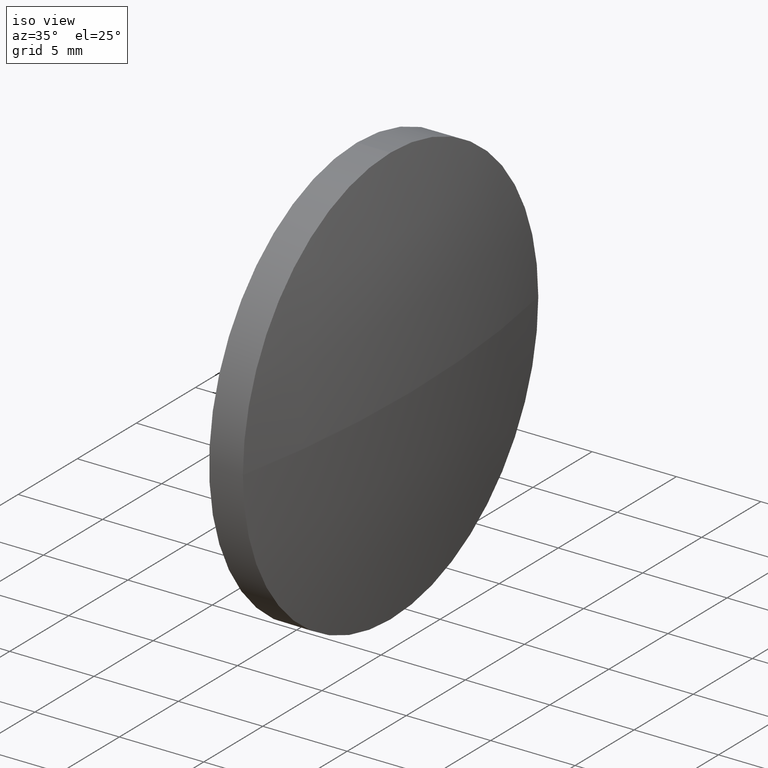
[diagram: clean part render]
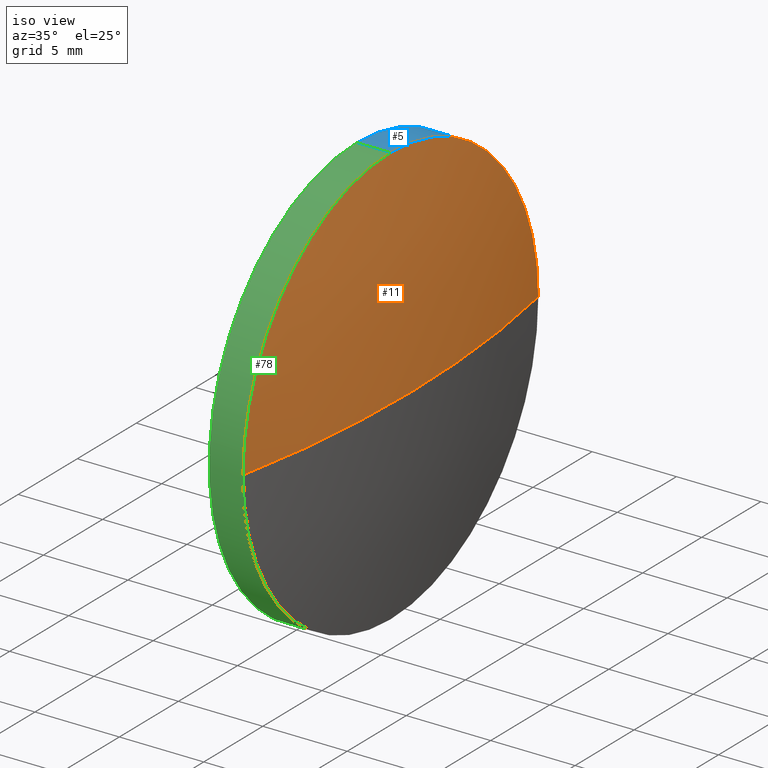
[diagram: same view with three faces highlighted in distinct colors, each labeled with its STEP entity id]
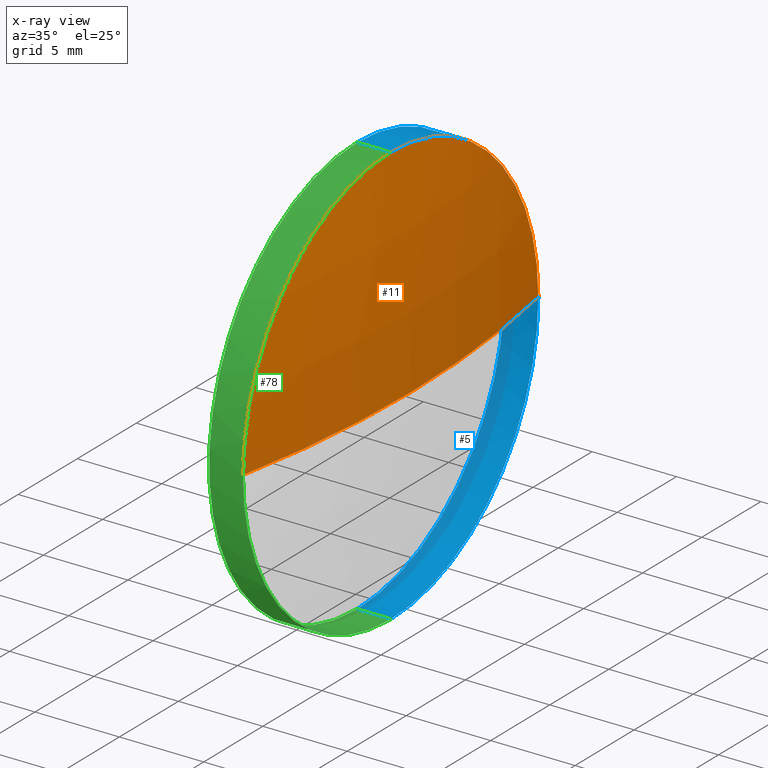
[diagram: x-ray of the same camera — body ghosted, the three highlighted faces saturated]
A machine part, iso view with three faces highlighted in distinct colors.
The next image is the same camera in x-ray (body ghosted, the three faces saturated) — at least one of them is partly hidden behind the body in this view.
Their STEP definitions:

[orange] entity #11 — the highlighted spherical surface has radius 64.6469 mm.
#1 = EDGE_CURVE ( 'NONE', #79, #54, #132, .T. ) ;
#8 = ORIENTED_EDGE ( 'NONE', *, *, #1, .F. ) ;
#9 = ORIENTED_EDGE ( 'NONE', *, *, #30, .T. ) ;
#11 = ADVANCED_FACE ( 'NONE', ( #145 ), #113, .T. ) ;
#16 = CARTESIAN_POINT ( 'NONE',  ( 663.6944572841594000, 125.1777850517631400, 0.0000000000000000000 ) ) ;
#20 = EDGE_LOOP ( 'NONE', ( #8, #9, #152, #94 ) ) ;
#28 = DIRECTION ( 'NONE',  ( 0.0000000000000000000, 0.0000000000000000000, 1.000000000000000000 ) ) ;
#30 = EDGE_CURVE ( 'NONE', #79, #40, #109, .T. ) ;
#40 = VERTEX_POINT ( 'NONE', #16 ) ;
#44 = DIRECTION ( 'NONE',  ( -0.0000000000000000000, 0.0000000000000000000, -1.000000000000000000 ) ) ;
#47 = AXIS2_PLACEMENT_3D ( 'NONE', #155, #172, #168 ) ;
#54 = VERTEX_POINT ( 'NONE', #165 ) ;
#65 = AXIS2_PLACEMENT_3D ( 'NONE', #131, #44, #70 ) ;
#68 = DIRECTION ( 'NONE',  ( 0.0000000000000000000, 1.224646799147353200E-016, -1.000000000000000000 ) ) ;
#70 = DIRECTION ( 'NONE',  ( 0.0000000000000000000, 1.000000000000000000, 0.0000000000000000000 ) ) ;
#79 = VERTEX_POINT ( 'NONE', #133 ) ;
#84 = DIRECTION ( 'NONE',  ( 0.0000000000000000000, 0.0000000000000000000, 1.000000000000000000 ) ) ;
#85 = CARTESIAN_POINT ( 'NONE',  ( 663.6944572841594000, 112.6777850517631800, 12.50000000000001100 ) ) ;
#87 = CARTESIAN_POINT ( 'NONE',  ( 663.6944572841594000, 112.6777850517631800, 0.0000000000000000000 ) ) ;
#94 = ORIENTED_EDGE ( 'NONE', *, *, #110, .F. ) ;
#95 = AXIS2_PLACEMENT_3D ( 'NONE', #140, #118, #28 ) ;
#97 = CIRCLE ( 'NONE', #171, 12.50000000000001100 ) ;
#109 = CIRCLE ( 'NONE', #47, 64.64688524590178500 ) ;
#110 = EDGE_CURVE ( 'NONE', #54, #121, #97, .T. ) ;
#113 = SPHERICAL_SURFACE ( 'NONE', #65, 64.64688524590181400 ) ;
#116 = DIRECTION ( 'NONE',  ( -1.000000000000000000, -0.0000000000000000000, -0.0000000000000000000 ) ) ;
#118 = DIRECTION ( 'NONE',  ( -1.000000000000000000, -0.0000000000000000000, -0.0000000000000000000 ) ) ;
#119 = EDGE_CURVE ( 'NONE', #121, #40, #178, .T. ) ;
#121 = VERTEX_POINT ( 'NONE', #85 ) ;
#131 = CARTESIAN_POINT ( 'NONE',  ( 600.2675720382576400, 112.6777850517629700, 0.0000000000000000000 ) ) ;
#132 = CIRCLE ( 'NONE', #144, 64.64688524590182800 ) ;
#133 = CARTESIAN_POINT ( 'NONE',  ( 664.9144572841594300, 112.6777850517629700, 0.0000000000000000000 ) ) ;
#140 = CARTESIAN_POINT ( 'NONE',  ( 663.6944572841594000, 112.6777850517631800, 0.0000000000000000000 ) ) ;
#141 = DIRECTION ( 'NONE',  ( 0.0000000000000000000, 1.000000000000000000, 1.224646799147353000E-016 ) ) ;
#144 = AXIS2_PLACEMENT_3D ( 'NONE', #148, #68, #141 ) ;
#145 = FACE_OUTER_BOUND ( 'NONE', #20, .T. ) ;
#148 = CARTESIAN_POINT ( 'NONE',  ( 600.2675720382576400, 112.6777850517629700, 0.0000000000000000000 ) ) ;
#152 = ORIENTED_EDGE ( 'NONE', *, *, #119, .F. ) ;
#155 = CARTESIAN_POINT ( 'NONE',  ( 600.2675720382576400, 112.6777850517629700, 0.0000000000000000000 ) ) ;
#165 = CARTESIAN_POINT ( 'NONE',  ( 663.6944572841594000, 100.1777850517630000, -1.530808498934188200E-015 ) ) ;
#168 = DIRECTION ( 'NONE',  ( 1.000000000000000000, 0.0000000000000000000, 0.0000000000000000000 ) ) ;
#171 = AXIS2_PLACEMENT_3D ( 'NONE', #87, #116, #84 ) ;
#172 = DIRECTION ( 'NONE',  ( -0.0000000000000000000, 0.0000000000000000000, 1.000000000000000000 ) ) ;
#178 = CIRCLE ( 'NONE', #95, 12.50000000000001100 ) ;

[blue] entity #5 — the highlighted cylindrical surface (partial cylindrical patch) has radius 12.5 mm, axis along (-1, -0, -0).
#5 = ADVANCED_FACE ( 'NONE', ( #157 ), #36, .T. ) ;
#16 = CARTESIAN_POINT ( 'NONE',  ( 663.6944572841594000, 125.1777850517631400, 0.0000000000000000000 ) ) ;
#21 = EDGE_CURVE ( 'NONE', #121, #83, #29, .T. ) ;
#24 = LINE ( 'NONE', #129, #73 ) ;
#28 = DIRECTION ( 'NONE',  ( 0.0000000000000000000, 0.0000000000000000000, 1.000000000000000000 ) ) ;
#29 = LINE ( 'NONE', #182, #147 ) ;
#31 = CARTESIAN_POINT ( 'NONE',  ( 661.6944572841594000, 112.6777850517631800, 12.50000000000001100 ) ) ;
#36 = CYLINDRICAL_SURFACE ( 'NONE', #77, 12.50000000000001100 ) ;
#40 = VERTEX_POINT ( 'NONE', #16 ) ;
#45 = ORIENTED_EDGE ( 'NONE', *, *, #177, .T. ) ;
#55 = CARTESIAN_POINT ( 'NONE',  ( 659.3288413813984300, 112.6777850517631800, 0.0000000000000000000 ) ) ;
#61 = EDGE_CURVE ( 'NONE', #83, #149, #135, .T. ) ;
#64 = CIRCLE ( 'NONE', #106, 12.50000000000001100 ) ;
#72 = DIRECTION ( 'NONE',  ( -1.000000000000000000, -0.0000000000000000000, -0.0000000000000000000 ) ) ;
#73 = VECTOR ( 'NONE', #181, 1000.000000000000000 ) ;
#75 = CARTESIAN_POINT ( 'NONE',  ( 663.6944572841594000, 112.6777850517631800, 0.0000000000000000000 ) ) ;
#77 = AXIS2_PLACEMENT_3D ( 'NONE', #55, #164, #81 ) ;
#81 = DIRECTION ( 'NONE',  ( 0.0000000000000000000, 0.0000000000000000000, 1.000000000000000000 ) ) ;
#83 = VERTEX_POINT ( 'NONE', #31 ) ;
#85 = CARTESIAN_POINT ( 'NONE',  ( 663.6944572841594000, 112.6777850517631800, 12.50000000000001100 ) ) ;
#93 = ORIENTED_EDGE ( 'NONE', *, *, #111, .T. ) ;
#95 = AXIS2_PLACEMENT_3D ( 'NONE', #140, #118, #28 ) ;
#105 = DIRECTION ( 'NONE',  ( -1.000000000000000000, -0.0000000000000000000, -0.0000000000000000000 ) ) ;
#106 = AXIS2_PLACEMENT_3D ( 'NONE', #75, #134, #183 ) ;
#111 = EDGE_CURVE ( 'NONE', #123, #149, #24, .T. ) ;
#118 = DIRECTION ( 'NONE',  ( -1.000000000000000000, -0.0000000000000000000, -0.0000000000000000000 ) ) ;
#119 = EDGE_CURVE ( 'NONE', #121, #40, #178, .T. ) ;
#121 = VERTEX_POINT ( 'NONE', #85 ) ;
#123 = VERTEX_POINT ( 'NONE', #150 ) ;
#124 = AXIS2_PLACEMENT_3D ( 'NONE', #170, #105, #167 ) ;
#128 = ORIENTED_EDGE ( 'NONE', *, *, #61, .F. ) ;
#129 = CARTESIAN_POINT ( 'NONE',  ( 659.3288413813984300, 112.6777850517631800, -12.50000000000001100 ) ) ;
#134 = DIRECTION ( 'NONE',  ( -1.000000000000000000, -0.0000000000000000000, -0.0000000000000000000 ) ) ;
#135 = CIRCLE ( 'NONE', #124, 12.50000000000001100 ) ;
#140 = CARTESIAN_POINT ( 'NONE',  ( 663.6944572841594000, 112.6777850517631800, 0.0000000000000000000 ) ) ;
#147 = VECTOR ( 'NONE', #72, 1000.000000000000000 ) ;
#149 = VERTEX_POINT ( 'NONE', #179 ) ;
#150 = CARTESIAN_POINT ( 'NONE',  ( 663.6944572841594000, 112.6777850517631800, -12.50000000000001100 ) ) ;
#157 = FACE_OUTER_BOUND ( 'NONE', #158, .T. ) ;
#158 = EDGE_LOOP ( 'NONE', ( #45, #93, #128, #163, #186 ) ) ;
#163 = ORIENTED_EDGE ( 'NONE', *, *, #21, .F. ) ;
#164 = DIRECTION ( 'NONE',  ( -1.000000000000000000, -0.0000000000000000000, -0.0000000000000000000 ) ) ;
#167 = DIRECTION ( 'NONE',  ( 0.0000000000000000000, 0.0000000000000000000, 1.000000000000000000 ) ) ;
#170 = CARTESIAN_POINT ( 'NONE',  ( 661.6944572841594000, 112.6777850517631800, 0.0000000000000000000 ) ) ;
#177 = EDGE_CURVE ( 'NONE', #40, #123, #64, .T. ) ;
#178 = CIRCLE ( 'NONE', #95, 12.50000000000001100 ) ;
#179 = CARTESIAN_POINT ( 'NONE',  ( 661.6944572841594000, 112.6777850517631800, -12.50000000000001100 ) ) ;
#181 = DIRECTION ( 'NONE',  ( -1.000000000000000000, -0.0000000000000000000, -0.0000000000000000000 ) ) ;
#182 = CARTESIAN_POINT ( 'NONE',  ( 659.3288413813984300, 112.6777850517631800, 12.50000000000001100 ) ) ;
#183 = DIRECTION ( 'NONE',  ( 0.0000000000000000000, 0.0000000000000000000, 1.000000000000000000 ) ) ;
#186 = ORIENTED_EDGE ( 'NONE', *, *, #119, .T. ) ;

[green] entity #78 — the highlighted cylindrical surface (partial cylindrical patch) has radius 12.5 mm, axis along (-1, -0, -0).
#3 = ORIENTED_EDGE ( 'NONE', *, *, #67, .F. ) ;
#13 = ORIENTED_EDGE ( 'NONE', *, *, #111, .F. ) ;
#17 = DIRECTION ( 'NONE',  ( -1.000000000000000000, -0.0000000000000000000, -0.0000000000000000000 ) ) ;
#21 = EDGE_CURVE ( 'NONE', #121, #83, #29, .T. ) ;
#24 = LINE ( 'NONE', #129, #73 ) ;
#26 = DIRECTION ( 'NONE',  ( -1.000000000000000000, -0.0000000000000000000, -0.0000000000000000000 ) ) ;
#27 = DIRECTION ( 'NONE',  ( -1.000000000000000000, -0.0000000000000000000, -0.0000000000000000000 ) ) ;
#29 = LINE ( 'NONE', #182, #147 ) ;
#31 = CARTESIAN_POINT ( 'NONE',  ( 661.6944572841594000, 112.6777850517631800, 12.50000000000001100 ) ) ;
#37 = CIRCLE ( 'NONE', #160, 12.50000000000001100 ) ;
#46 = DIRECTION ( 'NONE',  ( 0.0000000000000000000, 0.0000000000000000000, 1.000000000000000000 ) ) ;
#51 = ORIENTED_EDGE ( 'NONE', *, *, #63, .T. ) ;
#54 = VERTEX_POINT ( 'NONE', #165 ) ;
#56 = ORIENTED_EDGE ( 'NONE', *, *, #110, .T. ) ;
#60 = DIRECTION ( 'NONE',  ( 0.0000000000000000000, 0.0000000000000000000, 1.000000000000000000 ) ) ;
#63 = EDGE_CURVE ( 'NONE', #123, #54, #37, .T. ) ;
#67 = EDGE_CURVE ( 'NONE', #149, #83, #103, .T. ) ;
#69 = DIRECTION ( 'NONE',  ( 0.0000000000000000000, 0.0000000000000000000, 1.000000000000000000 ) ) ;
#72 = DIRECTION ( 'NONE',  ( -1.000000000000000000, -0.0000000000000000000, -0.0000000000000000000 ) ) ;
#73 = VECTOR ( 'NONE', #181, 1000.000000000000000 ) ;
#78 = ADVANCED_FACE ( 'NONE', ( #136 ), #169, .T. ) ;
#83 = VERTEX_POINT ( 'NONE', #31 ) ;
#84 = DIRECTION ( 'NONE',  ( 0.0000000000000000000, 0.0000000000000000000, 1.000000000000000000 ) ) ;
#85 = CARTESIAN_POINT ( 'NONE',  ( 663.6944572841594000, 112.6777850517631800, 12.50000000000001100 ) ) ;
#87 = CARTESIAN_POINT ( 'NONE',  ( 663.6944572841594000, 112.6777850517631800, 0.0000000000000000000 ) ) ;
#89 = EDGE_LOOP ( 'NONE', ( #13, #51, #56, #161, #3 ) ) ;
#91 = CARTESIAN_POINT ( 'NONE',  ( 659.3288413813984300, 112.6777850517631800, 0.0000000000000000000 ) ) ;
#97 = CIRCLE ( 'NONE', #171, 12.50000000000001100 ) ;
#99 = CARTESIAN_POINT ( 'NONE',  ( 661.6944572841594000, 112.6777850517631800, 0.0000000000000000000 ) ) ;
#103 = CIRCLE ( 'NONE', #112, 12.50000000000001100 ) ;
#104 = CARTESIAN_POINT ( 'NONE',  ( 663.6944572841594000, 112.6777850517631800, 0.0000000000000000000 ) ) ;
#110 = EDGE_CURVE ( 'NONE', #54, #121, #97, .T. ) ;
#111 = EDGE_CURVE ( 'NONE', #123, #149, #24, .T. ) ;
#112 = AXIS2_PLACEMENT_3D ( 'NONE', #99, #27, #60 ) ;
#116 = DIRECTION ( 'NONE',  ( -1.000000000000000000, -0.0000000000000000000, -0.0000000000000000000 ) ) ;
#121 = VERTEX_POINT ( 'NONE', #85 ) ;
#123 = VERTEX_POINT ( 'NONE', #150 ) ;
#126 = AXIS2_PLACEMENT_3D ( 'NONE', #91, #17, #69 ) ;
#129 = CARTESIAN_POINT ( 'NONE',  ( 659.3288413813984300, 112.6777850517631800, -12.50000000000001100 ) ) ;
#136 = FACE_OUTER_BOUND ( 'NONE', #89, .T. ) ;
#147 = VECTOR ( 'NONE', #72, 1000.000000000000000 ) ;
#149 = VERTEX_POINT ( 'NONE', #179 ) ;
#150 = CARTESIAN_POINT ( 'NONE',  ( 663.6944572841594000, 112.6777850517631800, -12.50000000000001100 ) ) ;
#160 = AXIS2_PLACEMENT_3D ( 'NONE', #104, #26, #46 ) ;
#161 = ORIENTED_EDGE ( 'NONE', *, *, #21, .T. ) ;
#165 = CARTESIAN_POINT ( 'NONE',  ( 663.6944572841594000, 100.1777850517630000, -1.530808498934188200E-015 ) ) ;
#169 = CYLINDRICAL_SURFACE ( 'NONE', #126, 12.50000000000001100 ) ;
#171 = AXIS2_PLACEMENT_3D ( 'NONE', #87, #116, #84 ) ;
#179 = CARTESIAN_POINT ( 'NONE',  ( 661.6944572841594000, 112.6777850517631800, -12.50000000000001100 ) ) ;
#181 = DIRECTION ( 'NONE',  ( -1.000000000000000000, -0.0000000000000000000, -0.0000000000000000000 ) ) ;
#182 = CARTESIAN_POINT ( 'NONE',  ( 659.3288413813984300, 112.6777850517631800, 12.50000000000001100 ) ) ;